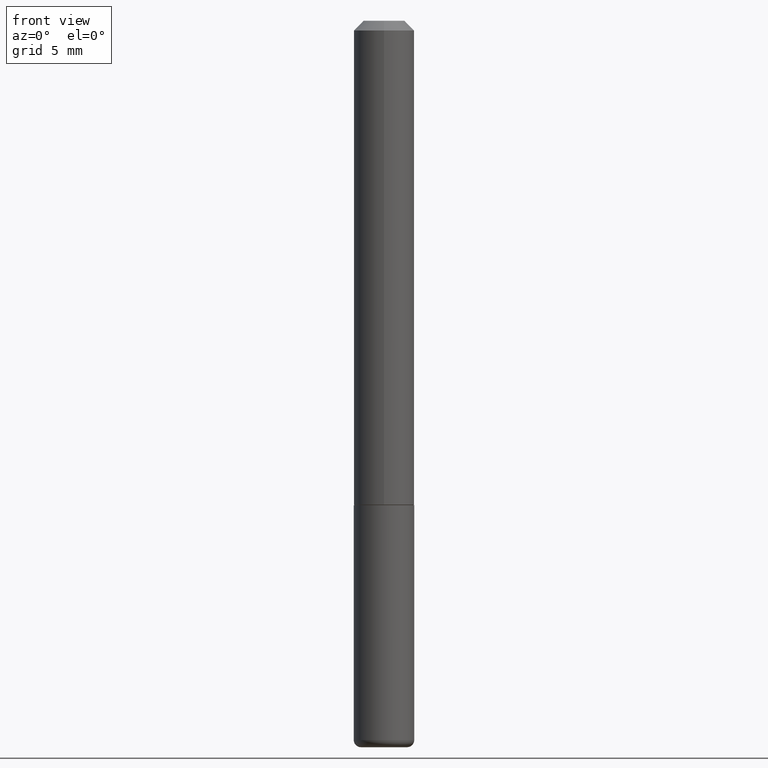
[diagram: clean part render]
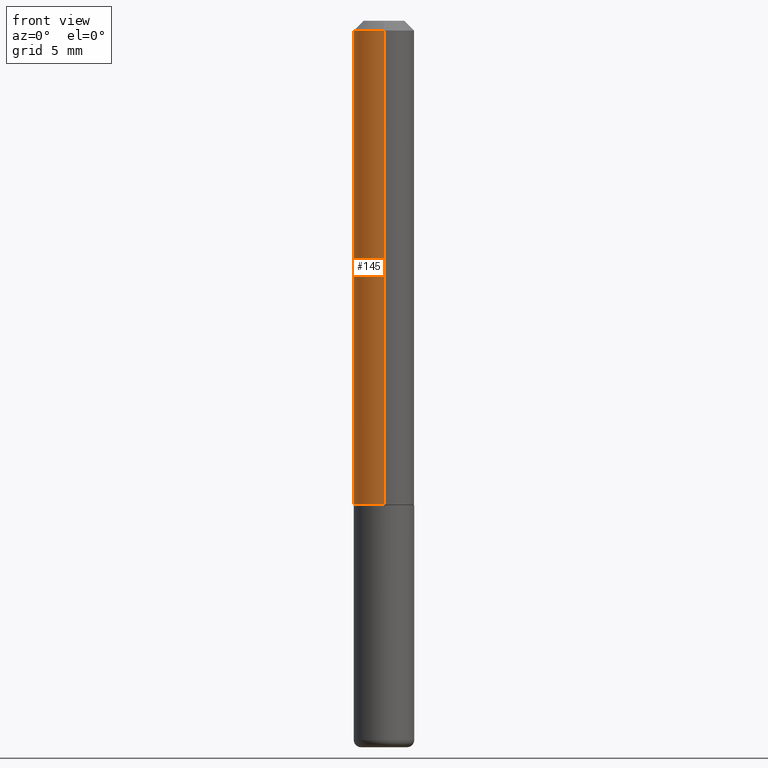
[diagram: same view with one face highlighted and labeled with its STEP entity id]
A machine part, front view. The second image highlights one B-rep face of the part: STEP entity #145.
In plain terms, the highlighted cylindrical surface (edge-blend (fillet) strip) has radius 1.5875 mm, axis along (-0, 0, 1).
Its self-contained STEP definition (entity closure, byte-faithful):
#1 = CARTESIAN_POINT ( 'NONE',  ( 2.420431046656757310E-29, -3.520343303691815911E-15, -0.9989999999999998881 ) ) ;
#25 = AXIS2_PLACEMENT_3D ( 'NONE', #242, #203, #369 ) ;
#26 = CARTESIAN_POINT ( 'NONE',  ( 4.440892098500754352E-16, 0.06249999999999659994, -0.9990000000000002212 ) ) ;
#37 = CIRCLE ( 'NONE', #335, 0.06250000000000012490 ) ;
#45 = CARTESIAN_POINT ( 'NONE',  ( 4.440892098500628134E-16, 0.06250000000000002776, -2.202416981789175288E-16 ) ) ;
#49 = CARTESIAN_POINT ( 'NONE',  ( 4.845707801114646817E-31, -7.047734341725380940E-17, -0.02000000000000006981 ) ) ;
#51 = EDGE_CURVE ( 'NONE', #352, #85, #37, .T. ) ;
#62 = VERTEX_POINT ( 'NONE', #108 ) ;
#70 = AXIS2_PLACEMENT_3D ( 'NONE', #49, #342, #81 ) ;
#76 = VECTOR ( 'NONE', #304, 39.37007874015748143 ) ;
#81 = DIRECTION ( 'NONE',  ( -6.982962677686265922E-15, -1.000000000000000000, 3.551402391763545142E-15 ) ) ;
#85 = VERTEX_POINT ( 'NONE', #104 ) ;
#97 = EDGE_CURVE ( 'NONE', #352, #260, #334, .T. ) ;
#102 = EDGE_CURVE ( 'NONE', #260, #62, #294, .T. ) ;
#104 = CARTESIAN_POINT ( 'NONE',  ( -4.364351673553682501E-16, -0.06250000000000363598, -0.9989999999999996660 ) ) ;
#108 = CARTESIAN_POINT ( 'NONE',  ( -4.287811248607198352E-16, -0.06250000000000001388, -0.01999999999999984776 ) ) ;
#113 = CYLINDRICAL_SURFACE ( 'NONE', #25, 0.06250000000000002776 ) ;
#129 = DIRECTION ( 'NONE',  ( -6.982962677686265133E-15, -1.000000000000000000, 4.370956789862812472E-15 ) ) ;
#130 = CARTESIAN_POINT ( 'NONE',  ( 4.364351673553917187E-16, 0.06249999999999988204, -0.02000000000000029185 ) ) ;
#145 = ADVANCED_FACE ( 'NONE', ( #205 ), #113, .T. ) ;
#147 = EDGE_CURVE ( 'NONE', #85, #62, #245, .T. ) ;
#175 = CARTESIAN_POINT ( 'NONE',  ( -4.364351673553918666E-16, -0.06250000000000002776, 2.202416981789175288E-16 ) ) ;
#203 = DIRECTION ( 'NONE',  ( -2.422853900557315141E-29, 3.523867170862678489E-15, 1.000000000000000000 ) ) ;
#205 = FACE_OUTER_BOUND ( 'NONE', #285, .T. ) ;
#222 = ORIENTED_EDGE ( 'NONE', *, *, #102, .F. ) ;
#242 = CARTESIAN_POINT ( 'NONE',  ( 0.000000000000000000, 0.000000000000000000, 0.000000000000000000 ) ) ;
#245 = LINE ( 'NONE', #175, #76 ) ;
#254 = VECTOR ( 'NONE', #302, 39.37007874015748143 ) ;
#260 = VERTEX_POINT ( 'NONE', #130 ) ;
#285 = EDGE_LOOP ( 'NONE', ( #412, #290, #399, #222 ) ) ;
#290 = ORIENTED_EDGE ( 'NONE', *, *, #51, .T. ) ;
#294 = CIRCLE ( 'NONE', #70, 0.06249999999999995143 ) ;
#302 = DIRECTION ( 'NONE',  ( -2.422853900557315141E-29, 3.523867170862678489E-15, 1.000000000000000000 ) ) ;
#304 = DIRECTION ( 'NONE',  ( -2.422853900557315141E-29, 3.523867170862678489E-15, 1.000000000000000000 ) ) ;
#334 = LINE ( 'NONE', #45, #254 ) ;
#335 = AXIS2_PLACEMENT_3D ( 'NONE', #1, #337, #129 ) ;
#337 = DIRECTION ( 'NONE',  ( -2.422853900557315141E-29, 3.523867170862678489E-15, 1.000000000000000000 ) ) ;
#342 = DIRECTION ( 'NONE',  ( -2.422853900557315141E-29, 3.523867170862678489E-15, 1.000000000000000000 ) ) ;
#352 = VERTEX_POINT ( 'NONE', #26 ) ;
#369 = DIRECTION ( 'NONE',  ( -6.982962677686266711E-15, -1.000000000000000000, 3.523867170862678884E-15 ) ) ;
#399 = ORIENTED_EDGE ( 'NONE', *, *, #147, .T. ) ;
#412 = ORIENTED_EDGE ( 'NONE', *, *, #97, .F. ) ;